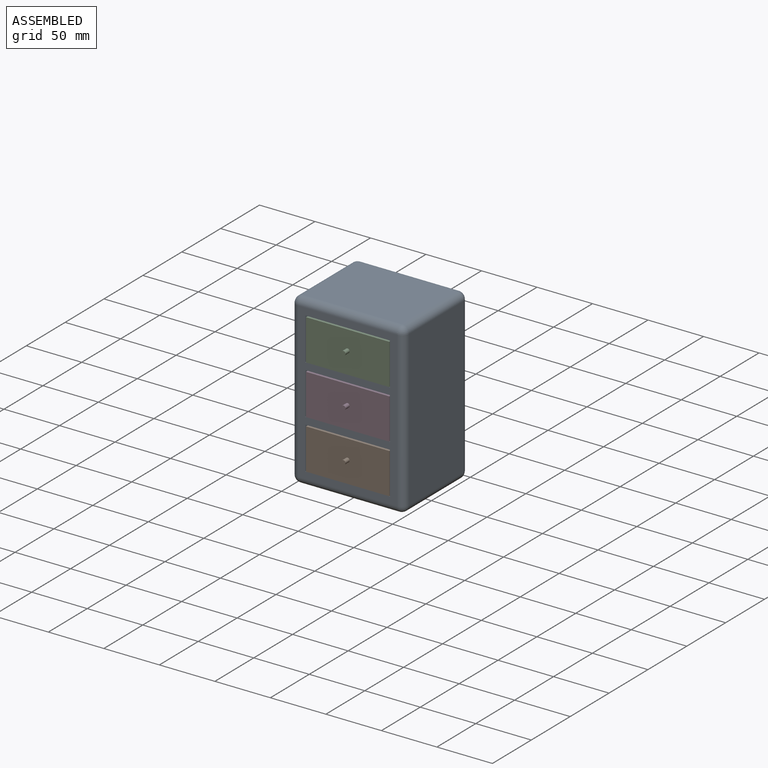
[diagram: assembled view]
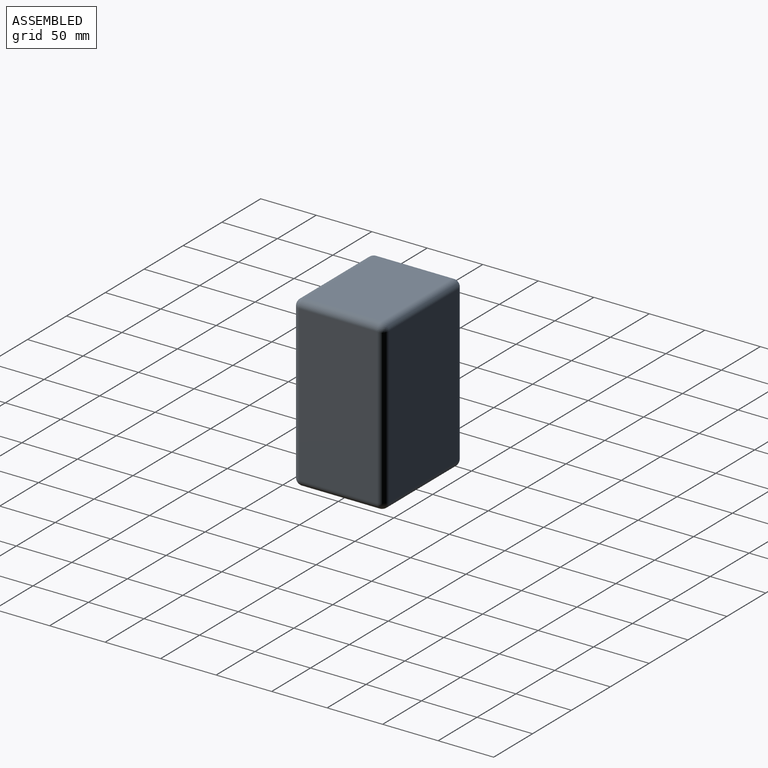
[diagram: assembled view, second angle]
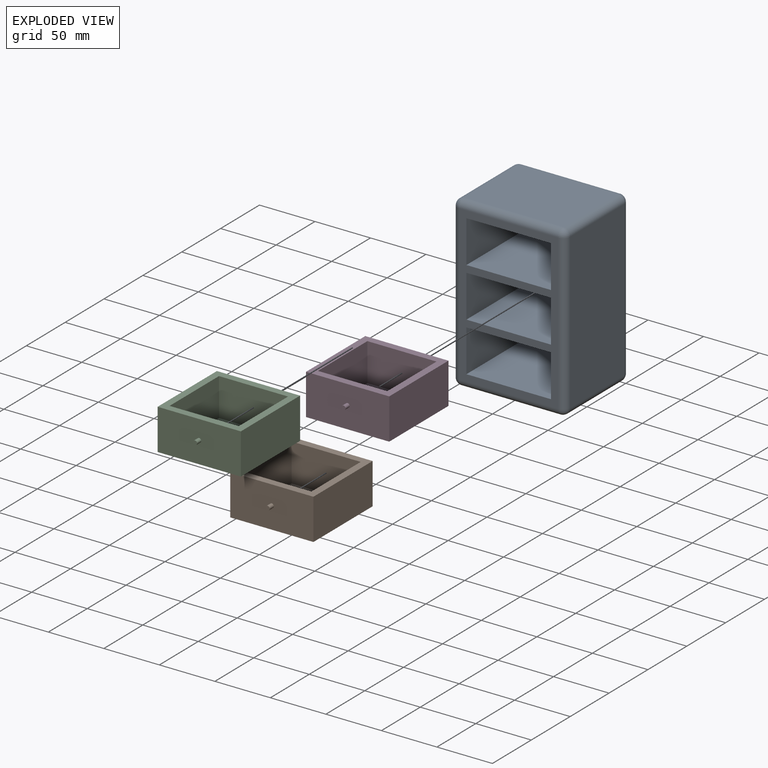
[diagram: exploded view]
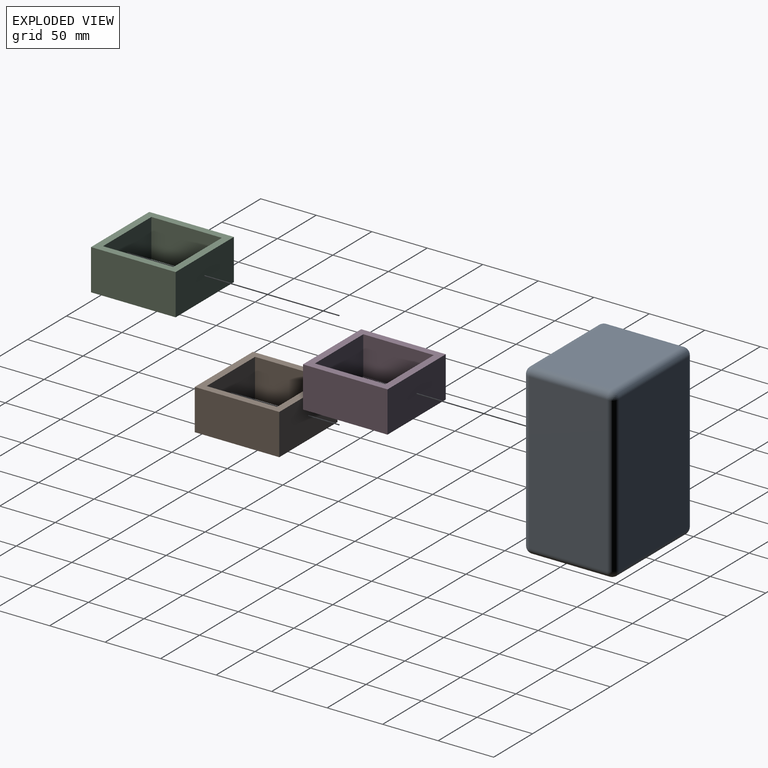
[diagram: exploded view, second angle]
ASSEMBLY  parts=4 mates=3
PART A: 41 faces, bbox 101.6x82.6x152.4 mm
  f0: plane 88.9x69.85mm, normal (0,0,1), area 6209.7mm2, adj f21,f24,f28,f29
  f1: plane 139.7x69.85mm, normal (-1,0,0), area 9758mm2, adj f24,f25,f34,f35
  f2: plane 88.9x69.85mm, normal (0,0,-1), area 6209.7mm2, adj f26,f35,f36,f40
  f3: plane 76.2x38.1mm, normal (1,0,0), area 2903.2mm2, adj f4,f12,f16,f17
  f4: plane 76.2x76.2mm, normal (0,0,-1), area 5806.4mm2, adj f3,f5,f16,f17
  f5: plane 76.2x38.1mm, normal (-1,0,0), area 2903.2mm2, adj f4,f12,f16,f17
  f6: plane 76.2x38.1mm, normal (1,0,0), area 2903.2mm2, adj f7,f13,f16,f18
  f7: plane 76.2x76.2mm, normal (0,0,-1), area 5806.4mm2, adj f6,f8,f16,f18
  f8: plane 76.2x38.1mm, normal (-1,0,0), area 2903.2mm2, adj f7,f13,f16,f18
  f9: plane 76.2x38.1mm, normal (1,0,0), area 2903.2mm2, adj f10,f14,f16,f19
  f10: plane 76.2x76.2mm, normal (0,0,-1), area 5806.4mm2, adj f9,f11,f16,f19
  f11: plane 76.2x38.1mm, normal (-1,0,0), area 2903.2mm2, adj f10,f14,f16,f19
  f12: plane 76.2x76.2mm, normal (0,0,1), area 5806.4mm2, adj f3,f5,f16,f17
  f13: plane 76.2x76.2mm, normal (0,0,1), area 5806.4mm2, adj f6,f8,f16,f18
  f14: plane 76.2x76.2mm, normal (0,0,1), area 5806.4mm2, adj f9,f11,f16,f19
  f15: plane 139.7x69.85mm, normal (1,0,0), area 9758mm2, adj f27,f28,f36,f37
  f16: plane 139.7x88.9mm, normal (0,-1,0), area 3709.7mm2, adj f3,f4,f5,f6,f7,f8,f9,f10
  f17: plane 76.2x38.1mm, normal (0,-1,0), area 2903.2mm2, adj f3,f4,f5,f12
  f18: plane 76.2x38.1mm, normal (0,-1,0), area 2903.2mm2, adj f6,f7,f8,f13
  f19: plane 76.2x38.1mm, normal (0,-1,0), area 2903.2mm2, adj f9,f10,f11,f14
  f20: plane 139.7x88.9mm, normal (0,1,0), area 12419.3mm2, adj f29,f34,f37,f40
  f21: cylinder r=6.35mm len=88.9mm, axis (1,0,0), area 886.7mm2, adj f0,f16,f22,f23
  f22: sphere r=6.35mm, area 63.3mm2, adj f21,f24,f25
  f23: sphere r=6.35mm, area 63.3mm2, adj f21,f27,f28
  f24: cylinder r=6.35mm len=69.85mm, axis (0,-1,0), area 696.7mm2, adj f0,f1,f22,f30
  f25: cylinder r=6.35mm len=139.7mm, axis (0,0,1), area 1393.4mm2, adj f1,f16,f22,f31
  f26: cylinder r=6.35mm len=88.9mm, axis (-1,0,0), area 886.7mm2, adj f2,f16,f31,f32
  f27: cylinder r=6.35mm len=139.7mm, axis (0,0,-1), area 1393.4mm2, adj f15,f16,f23,f32
  f28: cylinder r=6.35mm len=69.85mm, axis (0,1,0), area 696.7mm2, adj f0,f15,f23,f33
  f29: cylinder r=6.35mm len=88.9mm, axis (-1,0,0), area 886.7mm2, adj f0,f20,f30,f33
  f30: sphere r=6.35mm, area 63.3mm2, adj f24,f29,f34
  f31: sphere r=6.35mm, area 63.3mm2, adj f25,f26,f35
  f32: sphere r=6.35mm, area 63.3mm2, adj f26,f27,f36
  f33: sphere r=6.35mm, area 63.3mm2, adj f28,f29,f37
  f34: cylinder r=6.35mm len=139.7mm, axis (0,0,-1), area 1393.4mm2, adj f1,f20,f30,f38
  f35: cylinder r=6.35mm len=69.85mm, axis (0,1,0), area 696.7mm2, adj f1,f2,f31,f38
  f36: cylinder r=6.35mm len=69.85mm, axis (0,-1,0), area 696.7mm2, adj f2,f15,f32,f39
  f37: cylinder r=6.35mm len=139.7mm, axis (0,0,1), area 1393.4mm2, adj f15,f20,f33,f39
  f38: sphere r=6.35mm, area 63.3mm2, adj f34,f35,f40
  f39: sphere r=6.35mm, area 63.3mm2, adj f36,f37,f40
  f40: cylinder r=6.35mm len=88.9mm, axis (1,0,0), area 886.7mm2, adj f2,f20,f38,f39
PART B: 13 faces, bbox 74.9x81.5x36.8 mm
  f0: plane 76.2x74.93mm, normal (0,0,1), area 1758.1mm2, adj f1,f3,f4,f5,f6,f7,f8,f9
  f1: plane 76.2x36.83mm, normal (-1,0,0), area 2806.4mm2, adj f0,f2,f4,f5
  f2: plane 76.2x74.93mm, normal (0,0,-1), area 5709.7mm2, adj f1,f3,f4,f5
  f3: plane 76.2x36.83mm, normal (1,0,0), area 2806.4mm2, adj f0,f2,f4,f5
  f4: plane 74.93x36.83mm, normal (0,-1,0), area 2748.6mm2, adj f0,f1,f2,f3,f12
  f5: plane 74.93x36.83mm, normal (0,1,0), area 2759.7mm2, adj f0,f1,f2,f3
  f6: plane 62.23x34.16mm, normal (0,-1,0), area 2126mm2, adj f0,f7,f9,f10
  f7: plane 63.5x34.16mm, normal (1,0,0), area 2169.4mm2, adj f0,f6,f8,f10
  f8: plane 62.23x34.16mm, normal (0,1,0), area 2126mm2, adj f0,f7,f9,f10
  f9: plane 63.5x34.16mm, normal (-1,0,0), area 2169.4mm2, adj f0,f6,f8,f10
  f10: plane 63.5x62.23mm, normal (0,0,1), area 3951.6mm2, adj f6,f7,f8,f9
  f11: plane 3.75x3.75mm, normal (0,-1,0), area 11.1mm2, adj f12
  f12: cylinder r=1.88mm len=5.29mm, axis (0,1,0), area 62.3mm2, adj f4,f11
PART C: same geometry as B
PART D: same geometry as B
PLACE A t=(-98.3,-13.02,6.86)mm fixed
PLACE B t=(-98.1,-51.12,-31.01)mm
PLACE C t=(-98.1,-51.12,57.89)mm
PLACE D t=(-98.1,-51.12,13.44)mm
MATE slider C.f4 <-> A.f16  axis (0,-1,0) through (-98.01,-89.22,38.36)mm
MATE slider D.f4 <-> A.f16  axis (0,-1,0) through (-98.01,-89.22,-6.09)mm
MATE slider B.f4 <-> A.f16  axis (0,-1,0) through (-98.01,-89.22,-50.54)mm
